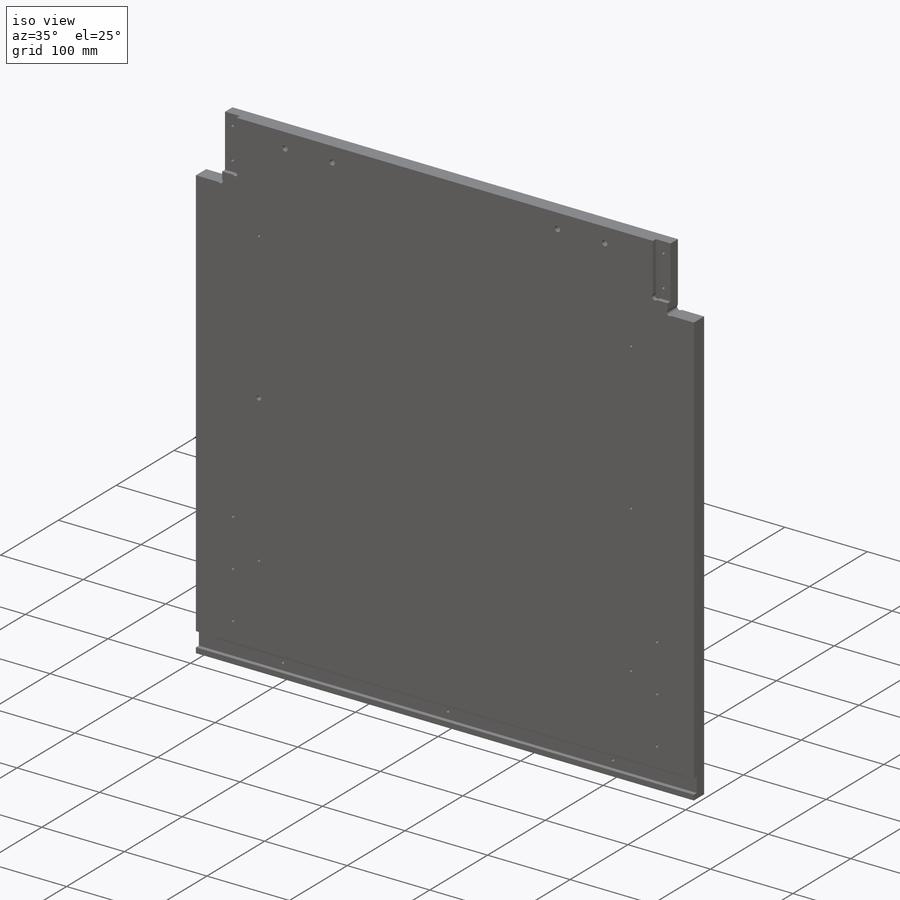
[diagram: iso view]
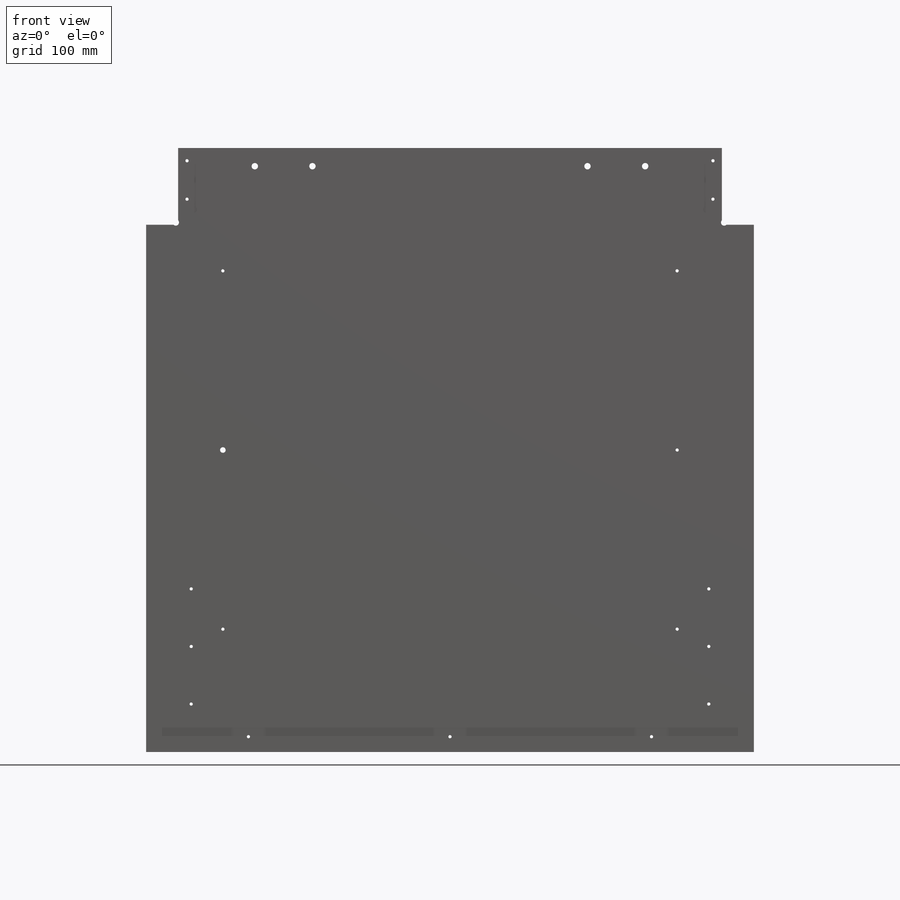
[diagram: front view]
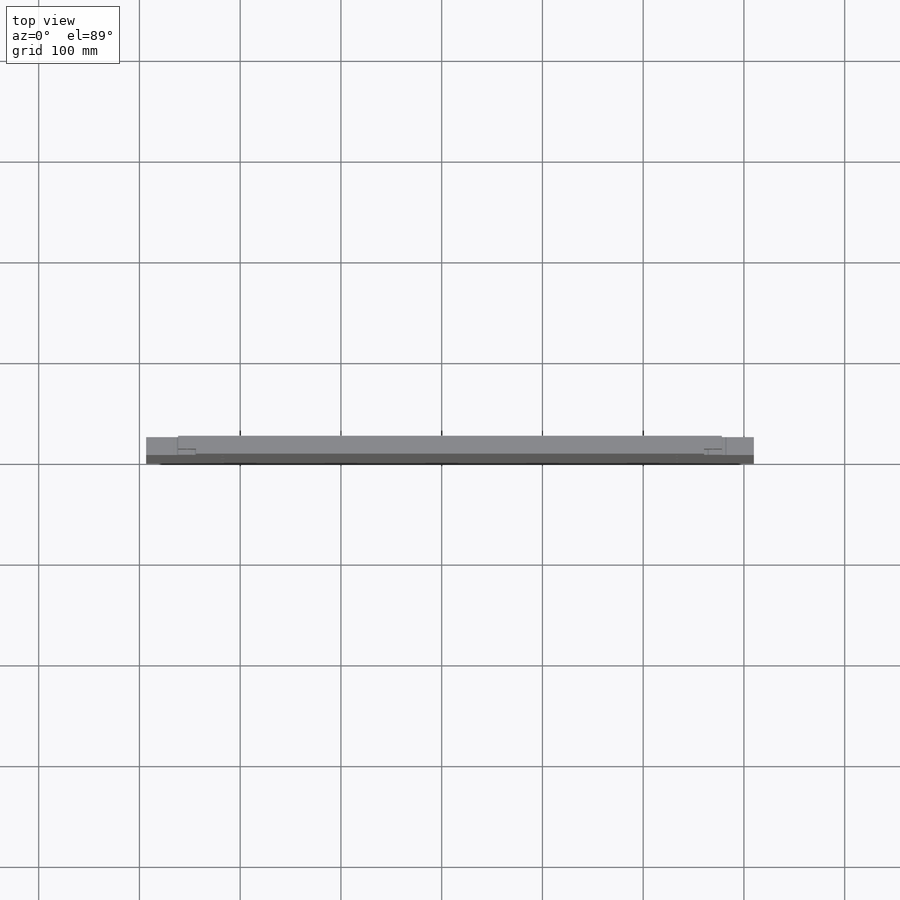
[diagram: top view]
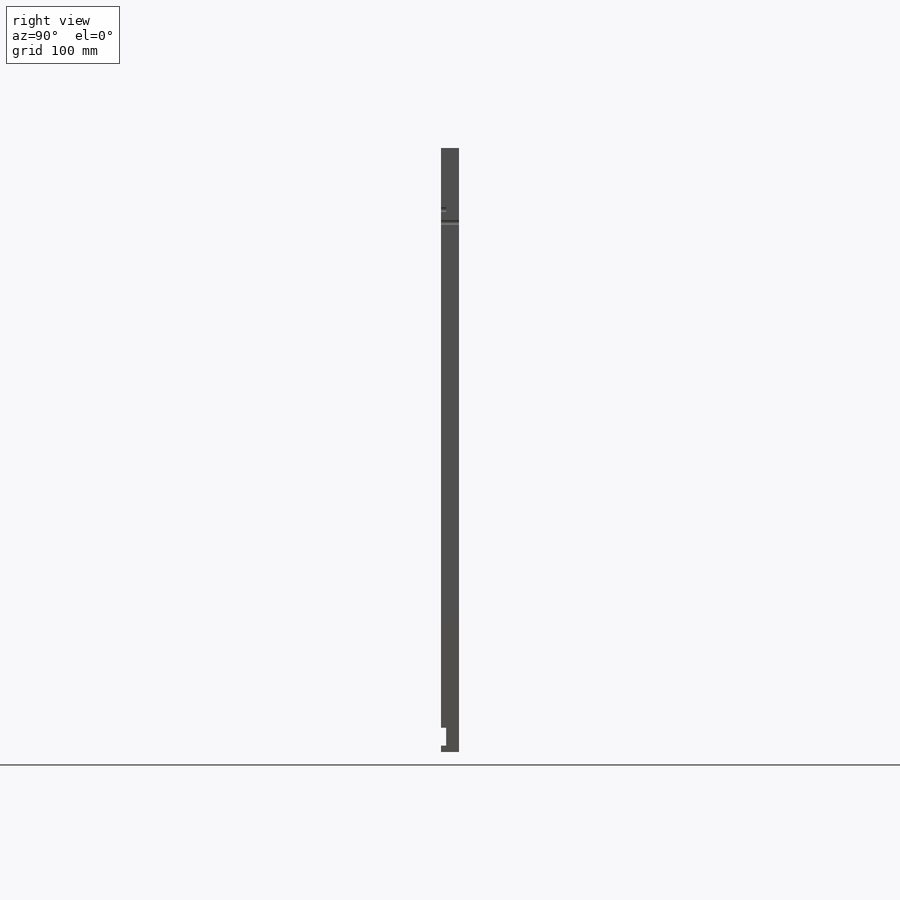
[diagram: right view]
SOLIDWORKS PART (.sldprt)
format: sldprt  version: not decoded by parser v0  size: 786,432 bytes
history: native  units: mm
features: sketch x7, cut_extrude x5, material x1, extrude x1 + 1 further entry (+15 scaffold rows collapsed)
feature tree (30):
  scaffold x15  (default folders/planes/origin — collapsed)
  material  "Pine"
  "Design Table"
  sketch  "Sketch1"
  sketch  "Sketch3"  dims[c1.D1=603.25mm c1.D2=31.75mm c1.D3=31.75mm c1.D4=76.2mm c2.D2=~599.525661mm]
  extrude  "Extrude1"  Depth=17.78mm
  sketch  "Sketch4"  dims[c1.D1=3.175mm c1.D2=3.175mm c2.D2=45.0deg c2.D3=3.175mm c2.D4=3.175mm c3.D4=45.0deg]
  cut_extrude  "Cut-Extrude1"  [1 undecoded]
  sketch  "Sketch6"  dims[D1=8.89mm D2=8.89mm D3=177.8mm D4=177.8mm D5=76.2mm D6=177.8mm D7=76.2mm D8=177.8mm D9=44.7675mm D10=104.775mm D11=44.7675mm D12=104.775mm]
  cut_extrude  "Cut-Extrude3"  [1 undecoded]
  sketch  "Sketch5"  dims[c1.D1=8.89mm c1.D2=8.89mm c1.D3=17.78mm c1.D4=17.78mm c2.D1=17.78mm]
  cut_extrude  "Cut-Extrude2"  Depth=5.08mm
  sketch  "Sketch7"  dims[c1.D1=3.175mm c2.D1=135.0deg c3.D1=3.175mm c4.D1=45.0deg c5.D1=3.175mm c6.D1=135.0deg c7.D1=3.175mm c8.D1=45.0deg c8.D2=3.175mm c8.D3=3.175mm c9.D3=45.0deg c10.D3=~2.245064mm c11.D3=45.0deg c11.D4=3.175mm]
  cut_extrude  "Cut-Extrude4"  [1 undecoded]
  sketch  "Sketch9"  dims[D1=~23.775526mm]
  cut_extrude  "Cut-Extrude5"  [1 undecoded]
decode coverage: 8 of 13 modeling features carry decoded parameters; 1 rows unclassified (native names shown)
note: ~ marks probable driven/reference dimensions
note: 4 parameter values undecoded
summary: no parameter record found for 4 features
note: suppression state not decoded; provenance and decode notes live in map.json
